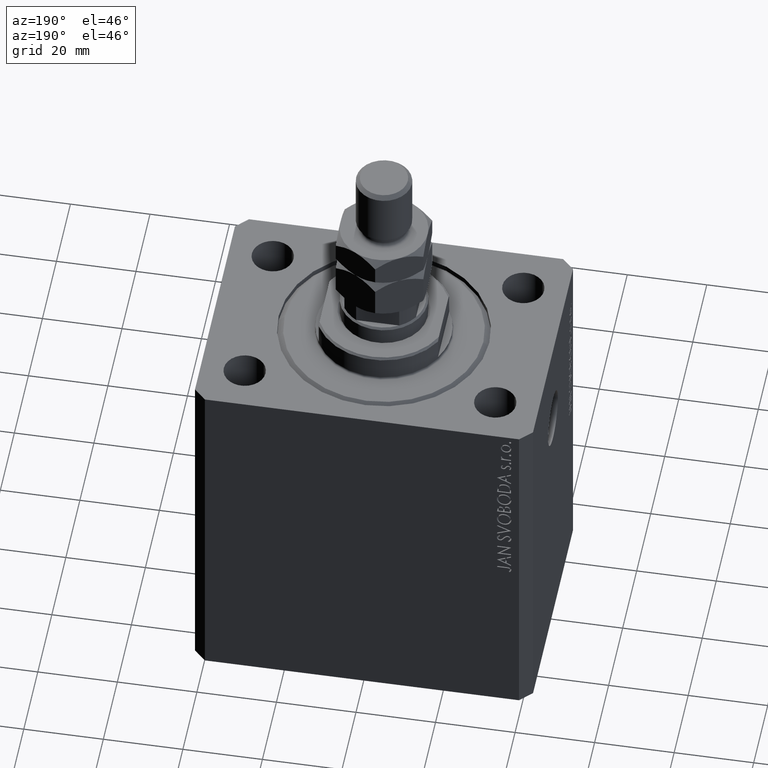
[diagram: clean part render]
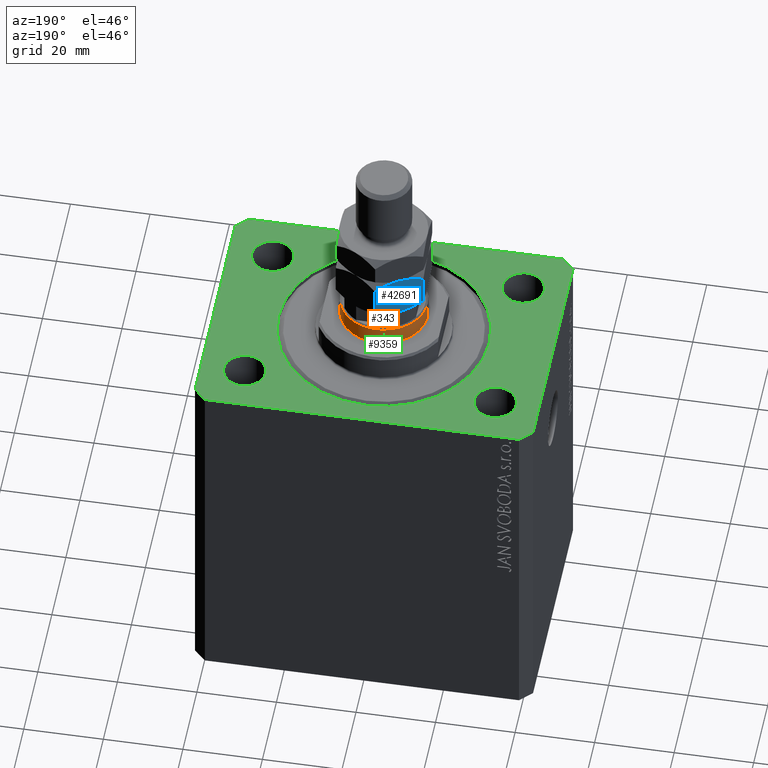
[diagram: same view with three faces highlighted in distinct colors, each labeled with its STEP entity id]
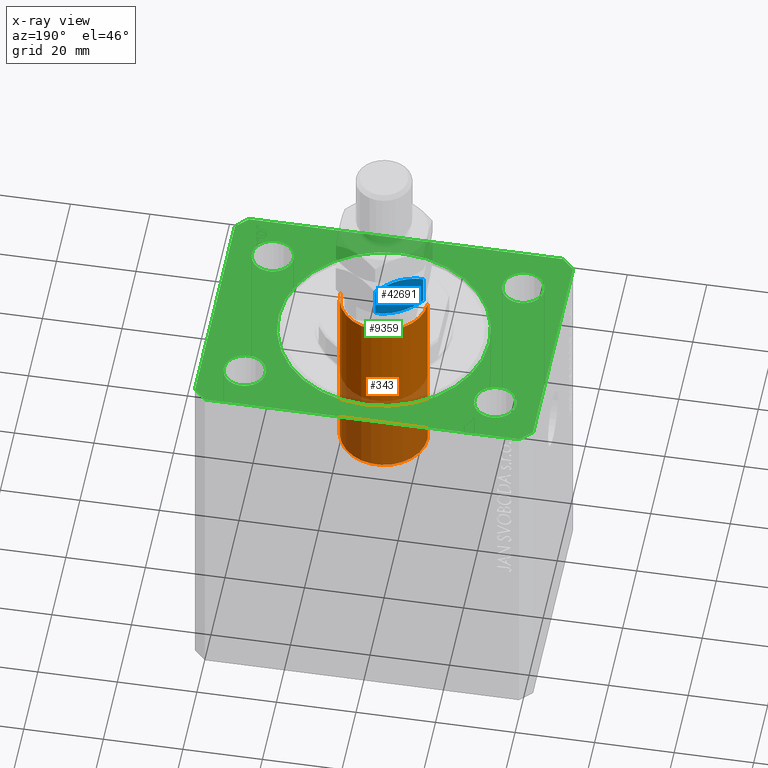
[diagram: x-ray of the same camera — body ghosted, the three highlighted faces saturated]
A machine part, auxiliary view with three faces highlighted in distinct colors.
The next image is the same camera in x-ray (body ghosted, the three faces saturated) — at least one of them is partly hidden behind the body in this view.
Their STEP definitions:

[orange] entity #343 — the highlighted cylindrical surface (partial cylindrical patch) has radius 11 mm, axis along (-0, -0, -1).
#343 = ADVANCED_FACE ( 'NONE', ( #35936 ), #31280, .T. ) ;
#1578 = ORIENTED_EDGE ( 'NONE', *, *, #38463, .F. ) ;
#1608 = VECTOR ( 'NONE', #12816, 1000.000000000000000 ) ;
#5433 = EDGE_CURVE ( 'NONE', #44333, #22823, #41202, .T. ) ;
#6532 = AXIS2_PLACEMENT_3D ( 'NONE', #39536, #35344, #32780 ) ;
#9486 = ORIENTED_EDGE ( 'NONE', *, *, #19312, .T. ) ;
#10927 = CARTESIAN_POINT ( 'NONE',  ( 0.000000000000000000, 0.000000000000000000, 92.60000000000005116 ) ) ;
#10986 = LINE ( 'NONE', #45418, #15664 ) ;
#12816 = DIRECTION ( 'NONE',  ( -0.000000000000000000, -0.000000000000000000, -1.000000000000000000 ) ) ;
#13266 = LINE ( 'NONE', #13494, #1608 ) ;
#13494 = CARTESIAN_POINT ( 'NONE',  ( -11.00000000000000000, 0.000000000000000000, 93.10000000000000853 ) ) ;
#15664 = VECTOR ( 'NONE', #17967, 1000.000000000000000 ) ;
#17452 = DIRECTION ( 'NONE',  ( 1.000000000000000000, 0.000000000000000000, 0.000000000000000000 ) ) ;
#17930 = CARTESIAN_POINT ( 'NONE',  ( -11.00000000000000000, 0.000000000000000000, 92.60000000000005116 ) ) ;
#17967 = DIRECTION ( 'NONE',  ( -0.000000000000000000, -0.000000000000000000, -1.000000000000000000 ) ) ;
#19312 = EDGE_CURVE ( 'NONE', #21444, #32672, #43736, .T. ) ;
#20804 = CARTESIAN_POINT ( 'NONE',  ( 0.000000000000000000, 0.000000000000000000, 93.10000000000000853 ) ) ;
#21444 = VERTEX_POINT ( 'NONE', #30530 ) ;
#22823 = VERTEX_POINT ( 'NONE', #39937 ) ;
#24200 = DIRECTION ( 'NONE',  ( 0.000000000000000000, 0.000000000000000000, -1.000000000000000000 ) ) ;
#24849 = AXIS2_PLACEMENT_3D ( 'NONE', #10927, #24200, #17452 ) ;
#27804 = ORIENTED_EDGE ( 'NONE', *, *, #31539, .T. ) ;
#30530 = CARTESIAN_POINT ( 'NONE',  ( 11.00000000000000000, 1.347111479062088207E-15, 44.60000000000000142 ) ) ;
#31280 = CYLINDRICAL_SURFACE ( 'NONE', #38329, 11.00000000000000000 ) ;
#31539 = EDGE_CURVE ( 'NONE', #22823, #21444, #10986, .T. ) ;
#32486 = EDGE_LOOP ( 'NONE', ( #43269, #27804, #9486, #1578 ) ) ;
#32672 = VERTEX_POINT ( 'NONE', #40020 ) ;
#32780 = DIRECTION ( 'NONE',  ( 1.000000000000000000, 0.000000000000000000, 0.000000000000000000 ) ) ;
#35344 = DIRECTION ( 'NONE',  ( 0.000000000000000000, 0.000000000000000000, 1.000000000000000000 ) ) ;
#35936 = FACE_OUTER_BOUND ( 'NONE', #32486, .T. ) ;
#38329 = AXIS2_PLACEMENT_3D ( 'NONE', #20804, #45459, #42679 ) ;
#38463 = EDGE_CURVE ( 'NONE', #44333, #32672, #13266, .T. ) ;
#39536 = CARTESIAN_POINT ( 'NONE',  ( 0.000000000000000000, 0.000000000000000000, 44.60000000000000142 ) ) ;
#39937 = CARTESIAN_POINT ( 'NONE',  ( 11.00000000000000000, 1.347111479062088207E-15, 92.60000000000005116 ) ) ;
#40020 = CARTESIAN_POINT ( 'NONE',  ( -11.00000000000000000, 0.000000000000000000, 44.60000000000000142 ) ) ;
#41202 = CIRCLE ( 'NONE', #24849, 11.00000000000000000 ) ;
#42679 = DIRECTION ( 'NONE',  ( -1.000000000000000000, 0.000000000000000000, 0.000000000000000000 ) ) ;
#43269 = ORIENTED_EDGE ( 'NONE', *, *, #5433, .T. ) ;
#43736 = CIRCLE ( 'NONE', #6532, 11.00000000000000000 ) ;
#44333 = VERTEX_POINT ( 'NONE', #17930 ) ;
#45418 = CARTESIAN_POINT ( 'NONE',  ( 11.00000000000000000, 1.347111479062088207E-15, 93.10000000000000853 ) ) ;
#45459 = DIRECTION ( 'NONE',  ( -0.000000000000000000, -0.000000000000000000, -1.000000000000000000 ) ) ;

[blue] entity #42691 — the highlighted planar face has unit normal (0.5, -0.866, 0).
#442 = B_SPLINE_CURVE_WITH_KNOTS ( 'NONE', 3,
 ( #16949, #30916, #34184, #1429, #16502, #31141 ),
 .UNSPECIFIED., .F., .F.,
 ( 4, 2, 4 ),
 ( 0.006583488920348289086, 0.009852050593448704457, 0.01312061226654911983 ),
 .UNSPECIFIED. ) ;
#1238 = CARTESIAN_POINT ( 'NONE',  ( -4.327962126576701651E-16, 12.70170592217176342, 9.298294077828241910 ) ) ;
#1429 = CARTESIAN_POINT ( 'NONE',  ( -9.251785468064188223, 7.360185091700242488, 10.22231519547797340 ) ) ;
#2005 = EDGE_LOOP ( 'NONE', ( #41921, #19827, #29934, #8061, #8279, #2424 ) ) ;
#2111 = CARTESIAN_POINT ( 'NONE',  ( -9.255521992360788985, 7.358027808391769398, 0.7806233875467772920 ) ) ;
#2215 = DIRECTION ( 'NONE',  ( 0.4999999999999993339, -0.8660254037844390407, 0.000000000000000000 ) ) ;
#2424 = ORIENTED_EDGE ( 'NONE', *, *, #34961, .F. ) ;
#5032 = FACE_OUTER_BOUND ( 'NONE', #2005, .T. ) ;
#5287 = B_SPLINE_CURVE_WITH_KNOTS ( 'NONE', 3,
 ( #1238, #29432, #43618, #36406, #25237, #39444, #11746, #25928 ),
 .UNSPECIFIED., .F., .F.,
 ( 4, 2, 2, 4 ),
 ( 2.544311317609508508E-07, 0.003291871675740026034, 0.004937680298044156910, 0.006583488920348289086 ),
 .UNSPECIFIED. ) ;
#6163 = EDGE_CURVE ( 'NONE', #33749, #21313, #43237, .T. ) ;
#6251 = EDGE_CURVE ( 'NONE', #28435, #33749, #27255, .T. ) ;
#6745 = CARTESIAN_POINT ( 'NONE',  ( -11.00000000000000000, 6.350852961085892368, 1.701705922171765195 ) ) ;
#7313 = CARTESIAN_POINT ( 'NONE',  ( -0.8614806024966418230, 12.20432986441868728, 1.204329864418604235 ) ) ;
#7670 = AXIS2_PLACEMENT_3D ( 'NONE', #37826, #2215, #37152 ) ;
#7780 = CARTESIAN_POINT ( 'NONE',  ( -5.499999999999992895, 9.526279441628830114, 0.000000000000000000 ) ) ;
#8061 = ORIENTED_EDGE ( 'NONE', *, *, #9406, .F. ) ;
#8279 = ORIENTED_EDGE ( 'NONE', *, *, #10611, .T. ) ;
#9114 = CARTESIAN_POINT ( 'NONE',  ( -7.884967580346608607, 8.149317767107183030, 0.3282192120904074417 ) ) ;
#9406 = EDGE_CURVE ( 'NONE', #43602, #23728, #5287, .T. ) ;
#10473 = CARTESIAN_POINT ( 'NONE',  ( 0.000000000000000000, 12.70170592217176342, 11.00000000000000000 ) ) ;
#10611 = EDGE_CURVE ( 'NONE', #43602, #27162, #42356, .T. ) ;
#11746 = CARTESIAN_POINT ( 'NONE',  ( -5.018290712253354435, 9.804394428580495813, 11.00000000000000178 ) ) ;
#13281 = DIRECTION ( 'NONE',  ( -0.000000000000000000, -0.000000000000000000, -1.000000000000000000 ) ) ;
#14770 = CARTESIAN_POINT ( 'NONE',  ( 9.006588997586899406E-16, 12.70170592217176342, 1.701705922171758312 ) ) ;
#15662 = CARTESIAN_POINT ( 'NONE',  ( -5.499999999999992895, 9.526279441628830114, 0.000000000000000000 ) ) ;
#16502 = CARTESIAN_POINT ( 'NONE',  ( -10.13851939750335696, 6.848229018838968507, 9.795670135581390880 ) ) ;
#16949 = CARTESIAN_POINT ( 'NONE',  ( -5.499999999999990230, 9.526279441628824785, 11.00000000000000000 ) ) ;
#17910 = CARTESIAN_POINT ( 'NONE',  ( -11.00000000000000000, 6.350852961085890591, 9.298294077828234805 ) ) ;
#19827 = ORIENTED_EDGE ( 'NONE', *, *, #6251, .F. ) ;
#20280 = CARTESIAN_POINT ( 'NONE',  ( -7.420105971005176215, 8.417705742396382362, 0.2081220748670755127 ) ) ;
#21313 = VERTEX_POINT ( 'NONE', #15662 ) ;
#21998 = CARTESIAN_POINT ( 'NONE',  ( -4.543329525579419048, 10.07861339756131791, 1.768604793866978714E-15 ) ) ;
#23728 = VERTEX_POINT ( 'NONE', #32049 ) ;
#25237 = CARTESIAN_POINT ( 'NONE',  ( -3.579894028994817123, 10.63485314086127786, 10.79187792513292798 ) ) ;
#25928 = CARTESIAN_POINT ( 'NONE',  ( -5.499999999999990230, 9.526279441628824785, 11.00000000000000000 ) ) ;
#26797 = CARTESIAN_POINT ( 'NONE',  ( -5.499999999999992895, 9.526279441628830114, 0.000000000000000000 ) ) ;
#27162 = VERTEX_POINT ( 'NONE', #34908 ) ;
#27255 = LINE ( 'NONE', #45158, #36029 ) ;
#28435 = VERTEX_POINT ( 'NONE', #17910 ) ;
#29432 = CARTESIAN_POINT ( 'NONE',  ( -0.8624791307172121613, 12.20375336388174681, 9.796246636118258522 ) ) ;
#29934 = ORIENTED_EDGE ( 'NONE', *, *, #43277, .F. ) ;
#30916 = CARTESIAN_POINT ( 'NONE',  ( -6.456670474420569406, 8.973945485696344093, 11.00000000000000000 ) ) ;
#31141 = CARTESIAN_POINT ( 'NONE',  ( -11.00000000000000000, 6.350852961085890591, 9.298294077828234805 ) ) ;
#32049 = CARTESIAN_POINT ( 'NONE',  ( -5.499999999999990230, 9.526279441628824785, 11.00000000000000000 ) ) ;
#32454 = CARTESIAN_POINT ( 'NONE',  ( -1.748214531935804672, 11.69237379155741330, 0.7776848045220272621 ) ) ;
#33749 = VERTEX_POINT ( 'NONE', #6745 ) ;
#33786 = CARTESIAN_POINT ( 'NONE',  ( -11.00000000000000000, 6.350852961085892368, 1.701705922171765195 ) ) ;
#34184 = CARTESIAN_POINT ( 'NONE',  ( -7.397073880711845462, 8.431003325927239445, 10.83109139163524404 ) ) ;
#34469 = CARTESIAN_POINT ( 'NONE',  ( -5.981709287746635795, 9.248164454677164414, 1.734723475976807094E-15 ) ) ;
#34908 = CARTESIAN_POINT ( 'NONE',  ( 9.006588997586899406E-16, 12.70170592217176342, 1.701705922171758312 ) ) ;
#34961 = EDGE_CURVE ( 'NONE', #21313, #27162, #41145, .T. ) ;
#36029 = VECTOR ( 'NONE', #44707, 1000.000000000000000 ) ;
#36175 = CARTESIAN_POINT ( 'NONE',  ( -3.602926119288147433, 10.62155555733042434, 0.1689086083647601266 ) ) ;
#36406 = CARTESIAN_POINT ( 'NONE',  ( -3.115032419653383400, 10.90324111615047542, 10.67178078790959539 ) ) ;
#37152 = DIRECTION ( 'NONE',  ( 0.8660254037844389297, 0.4999999999999992784, 0.000000000000000000 ) ) ;
#37603 = PLANE ( 'NONE',  #7670 ) ;
#37826 = CARTESIAN_POINT ( 'NONE',  ( 0.000000000000000000, 12.70170592217176342, 11.00000000000000000 ) ) ;
#37951 = CARTESIAN_POINT ( 'NONE',  ( -10.13752086928278118, 6.848805519375908979, 1.203753363881748362 ) ) ;
#39444 = CARTESIAN_POINT ( 'NONE',  ( -4.529374112020101428, 10.08667055933643830, 10.95634070256487469 ) ) ;
#41145 = B_SPLINE_CURVE_WITH_KNOTS ( 'NONE', 3,
 ( #7780, #21998, #36175, #32454, #7313, #14770 ),
 .UNSPECIFIED., .F., .F.,
 ( 4, 2, 4 ),
 ( 0.006583488920348303831, 0.009852050593448711396, 0.01312061226654911809 ),
 .UNSPECIFIED. ) ;
#41921 = ORIENTED_EDGE ( 'NONE', *, *, #6163, .F. ) ;
#42019 = CARTESIAN_POINT ( 'NONE',  ( -4.327962126576701651E-16, 12.70170592217176342, 9.298294077828241910 ) ) ;
#42356 = LINE ( 'NONE', #10473, #43252 ) ;
#42691 = ADVANCED_FACE ( 'NONE', ( #5032 ), #37603, .F. ) ;
#43237 = B_SPLINE_CURVE_WITH_KNOTS ( 'NONE', 3,
 ( #33786, #37951, #2111, #9114, #20280, #45376, #34469, #26797 ),
 .UNSPECIFIED., .F., .F.,
 ( 4, 2, 2, 4 ),
 ( 2.544311317612473652E-07, 0.003291871675740032539, 0.004937680298044168185, 0.006583488920348303831 ),
 .UNSPECIFIED. ) ;
#43252 = VECTOR ( 'NONE', #13281, 1000.000000000000000 ) ;
#43277 = EDGE_CURVE ( 'NONE', #23728, #28435, #442, .T. ) ;
#43602 = VERTEX_POINT ( 'NONE', #42019 ) ;
#43618 = CARTESIAN_POINT ( 'NONE',  ( -1.744478007639206130, 11.69453107486589083, 10.21937661245322637 ) ) ;
#44707 = DIRECTION ( 'NONE',  ( -0.000000000000000000, -0.000000000000000000, -1.000000000000000000 ) ) ;
#45158 = CARTESIAN_POINT ( 'NONE',  ( -11.00000000000000000, 6.350852961085890591, 11.00000000000000000 ) ) ;
#45376 = CARTESIAN_POINT ( 'NONE',  ( -6.470625887979888802, 8.965888323921223702, 0.04365929743512723255 ) ) ;

[green] entity #9359 — the highlighted planar face has unit normal (0, 0, 1).
#117 = VERTEX_POINT ( 'NONE', #4147 ) ;
#157 = CIRCLE ( 'NONE', #41811, 5.250000000000000888 ) ;
#229 = AXIS2_PLACEMENT_3D ( 'NONE', #12616, #33566, #8886 ) ;
#309 = EDGE_CURVE ( 'NONE', #11316, #4796, #17773, .T. ) ;
#405 = VECTOR ( 'NONE', #31740, 1000.000000000000114 ) ;
#542 = PLANE ( 'NONE',  #35781 ) ;
#978 = VECTOR ( 'NONE', #18097, 1000.000000000000000 ) ;
#1433 = CARTESIAN_POINT ( 'NONE',  ( -36.74999999999999289, -20.00000000000000355, 0.000000000000000000 ) ) ;
#1660 = CARTESIAN_POINT ( 'NONE',  ( 36.74999999999999289, -20.00000000000000355, 0.000000000000000000 ) ) ;
#2466 = EDGE_CURVE ( 'NONE', #21370, #44953, #31538, .T. ) ;
#2717 = CARTESIAN_POINT ( 'NONE',  ( -39.50000000000000711, 31.50000000000000000, 0.000000000000000000 ) ) ;
#2769 = CIRCLE ( 'NONE', #15433, 5.250000000000000888 ) ;
#2870 = EDGE_CURVE ( 'NONE', #24337, #21045, #11691, .T. ) ;
#3611 = CARTESIAN_POINT ( 'NONE',  ( -26.50000000000000355, 3.245314017740486554E-15, 0.000000000000000000 ) ) ;
#3902 = DIRECTION ( 'NONE',  ( 0.7071067811865483499, 0.7071067811865466846, 0.000000000000000000 ) ) ;
#4147 = CARTESIAN_POINT ( 'NONE',  ( 26.24999999999999645, -20.00000000000000355, 0.000000000000000000 ) ) ;
#4379 = ORIENTED_EDGE ( 'NONE', *, *, #37944, .F. ) ;
#4512 = FACE_BOUND ( 'NONE', #43659, .T. ) ;
#4796 = VERTEX_POINT ( 'NONE', #45980 ) ;
#5135 = DIRECTION ( 'NONE',  ( 1.000000000000000000, 0.000000000000000000, 0.000000000000000000 ) ) ;
#5367 = DIRECTION ( 'NONE',  ( 0.000000000000000000, 0.000000000000000000, 1.000000000000000000 ) ) ;
#5512 = VECTOR ( 'NONE', #33326, 1000.000000000000000 ) ;
#5907 = DIRECTION ( 'NONE',  ( 1.000000000000000000, 0.000000000000000000, 0.000000000000000000 ) ) ;
#5973 = ORIENTED_EDGE ( 'NONE', *, *, #40123, .T. ) ;
#6657 = ORIENTED_EDGE ( 'NONE', *, *, #14034, .F. ) ;
#6891 = ORIENTED_EDGE ( 'NONE', *, *, #9670, .T. ) ;
#7043 = CARTESIAN_POINT ( 'NONE',  ( -31.50000000000000000, 19.99999999999999645, 0.000000000000000000 ) ) ;
#7070 = DIRECTION ( 'NONE',  ( 1.000000000000000000, 0.000000000000000000, 0.000000000000000000 ) ) ;
#7399 = LINE ( 'NONE', #43480, #43292 ) ;
#7588 = CARTESIAN_POINT ( 'NONE',  ( 36.75000000000000000, 19.99999999999999289, 0.000000000000000000 ) ) ;
#8010 = DIRECTION ( 'NONE',  ( 1.000000000000000000, 0.000000000000000000, -0.000000000000000000 ) ) ;
#8120 = LINE ( 'NONE', #36527, #22410 ) ;
#8742 = ORIENTED_EDGE ( 'NONE', *, *, #42578, .T. ) ;
#8886 = DIRECTION ( 'NONE',  ( 1.000000000000000000, 0.000000000000000000, 0.000000000000000000 ) ) ;
#9247 = EDGE_LOOP ( 'NONE', ( #41302, #38314 ) ) ;
#9359 = ADVANCED_FACE ( 'NONE', ( #43849, #43396, #4512, #18961, #22000, #18490 ), #542, .T. ) ;
#9460 = EDGE_CURVE ( 'NONE', #45649, #27374, #37277, .T. ) ;
#9670 = EDGE_CURVE ( 'NONE', #4796, #24337, #8120, .T. ) ;
#9796 = AXIS2_PLACEMENT_3D ( 'NONE', #33316, #5367, #5135 ) ;
#10523 = CARTESIAN_POINT ( 'NONE',  ( -26.25000000000000000, 19.99999999999999645, 0.000000000000000000 ) ) ;
#10617 = AXIS2_PLACEMENT_3D ( 'NONE', #21787, #25027, #39225 ) ;
#10795 = ORIENTED_EDGE ( 'NONE', *, *, #25077, .T. ) ;
#11155 = ORIENTED_EDGE ( 'NONE', *, *, #2466, .T. ) ;
#11316 = VERTEX_POINT ( 'NONE', #34918 ) ;
#11691 = LINE ( 'NONE', #44030, #5512 ) ;
#11810 = LINE ( 'NONE', #15528, #978 ) ;
#11816 = DIRECTION ( 'NONE',  ( 8.886653596232072440E-15, 1.000000000000000000, 0.000000000000000000 ) ) ;
#11949 = ORIENTED_EDGE ( 'NONE', *, *, #38352, .F. ) ;
#12068 = CIRCLE ( 'NONE', #18779, 5.249999999999997335 ) ;
#12162 = CARTESIAN_POINT ( 'NONE',  ( -31.50000000000000000, 19.99999999999999645, 0.000000000000000000 ) ) ;
#12168 = CIRCLE ( 'NONE', #15156, 5.250000000000000888 ) ;
#12223 = EDGE_CURVE ( 'NONE', #117, #36104, #12068, .T. ) ;
#12616 = CARTESIAN_POINT ( 'NONE',  ( 0.000000000000000000, 0.000000000000000000, 0.000000000000000000 ) ) ;
#13304 = CARTESIAN_POINT ( 'NONE',  ( -31.49999999999999289, -20.00000000000000355, 0.000000000000000000 ) ) ;
#14034 = EDGE_CURVE ( 'NONE', #36104, #117, #32964, .T. ) ;
#14208 = CARTESIAN_POINT ( 'NONE',  ( -36.75000000000000000, 19.99999999999999645, 0.000000000000000000 ) ) ;
#15041 = ORIENTED_EDGE ( 'NONE', *, *, #309, .T. ) ;
#15156 = AXIS2_PLACEMENT_3D ( 'NONE', #12162, #40546, #33335 ) ;
#15431 = CARTESIAN_POINT ( 'NONE',  ( -42.50000000000000000, -28.50000000000000000, 0.000000000000000000 ) ) ;
#15433 = AXIS2_PLACEMENT_3D ( 'NONE', #29923, #44789, #44338 ) ;
#15498 = CIRCLE ( 'NONE', #27371, 5.250000000000000888 ) ;
#15528 = CARTESIAN_POINT ( 'NONE',  ( -42.50000000000000000, 28.50000000000000000, 0.000000000000000000 ) ) ;
#16870 = VERTEX_POINT ( 'NONE', #34827 ) ;
#17200 = CIRCLE ( 'NONE', #41000, 5.249999999999997335 ) ;
#17773 = LINE ( 'NONE', #35233, #405 ) ;
#17785 = CARTESIAN_POINT ( 'NONE',  ( 31.50000000000000000, 19.99999999999999289, 0.000000000000000000 ) ) ;
#18097 = DIRECTION ( 'NONE',  ( 0.000000000000000000, -1.000000000000000000, 0.000000000000000000 ) ) ;
#18284 = CARTESIAN_POINT ( 'NONE',  ( -42.50000000000000000, 28.50000000000000000, 0.000000000000000000 ) ) ;
#18490 = FACE_OUTER_BOUND ( 'NONE', #33239, .T. ) ;
#18779 = AXIS2_PLACEMENT_3D ( 'NONE', #22684, #29434, #37327 ) ;
#18961 = FACE_BOUND ( 'NONE', #45683, .T. ) ;
#19025 = CARTESIAN_POINT ( 'NONE',  ( 42.50000000000000711, -28.50000000000000355, 0.000000000000000000 ) ) ;
#20774 = CARTESIAN_POINT ( 'NONE',  ( 0.000000000000000000, 0.000000000000000000, 0.000000000000000000 ) ) ;
#21045 = VERTEX_POINT ( 'NONE', #18284 ) ;
#21238 = EDGE_CURVE ( 'NONE', #33827, #23905, #15498, .T. ) ;
#21370 = VERTEX_POINT ( 'NONE', #15431 ) ;
#21787 = CARTESIAN_POINT ( 'NONE',  ( 31.49999999999999289, -20.00000000000000355, 0.000000000000000000 ) ) ;
#21972 = ORIENTED_EDGE ( 'NONE', *, *, #2870, .T. ) ;
#22000 = FACE_BOUND ( 'NONE', #32313, .T. ) ;
#22410 = VECTOR ( 'NONE', #45309, 1000.000000000000000 ) ;
#22684 = CARTESIAN_POINT ( 'NONE',  ( 31.49999999999999289, -20.00000000000000355, 0.000000000000000000 ) ) ;
#22932 = EDGE_CURVE ( 'NONE', #44238, #43131, #2769, .T. ) ;
#23153 = LINE ( 'NONE', #23828, #38820 ) ;
#23828 = CARTESIAN_POINT ( 'NONE',  ( -39.50000000000000711, -31.50000000000000000, 0.000000000000000000 ) ) ;
#23905 = VERTEX_POINT ( 'NONE', #10523 ) ;
#24067 = CARTESIAN_POINT ( 'NONE',  ( -39.50000000000000711, -31.50000000000000000, 0.000000000000000000 ) ) ;
#24091 = CARTESIAN_POINT ( 'NONE',  ( -42.50000000000000000, -28.50000000000000000, 0.000000000000000000 ) ) ;
#24337 = VERTEX_POINT ( 'NONE', #2717 ) ;
#24773 = DIRECTION ( 'NONE',  ( 0.7071067811865471286, -0.7071067811865479058, 0.000000000000000000 ) ) ;
#24969 = ORIENTED_EDGE ( 'NONE', *, *, #43255, .F. ) ;
#25027 = DIRECTION ( 'NONE',  ( 0.000000000000000000, 0.000000000000000000, 1.000000000000000000 ) ) ;
#25077 = EDGE_CURVE ( 'NONE', #32965, #11316, #43003, .T. ) ;
#25310 = CARTESIAN_POINT ( 'NONE',  ( 42.50000000000000711, -28.50000000000000355, 0.000000000000000000 ) ) ;
#25439 = ORIENTED_EDGE ( 'NONE', *, *, #22932, .F. ) ;
#25470 = DIRECTION ( 'NONE',  ( 0.000000000000000000, 0.000000000000000000, 1.000000000000000000 ) ) ;
#25698 = CARTESIAN_POINT ( 'NONE',  ( 0.000000000000000000, 0.000000000000000000, 0.000000000000000000 ) ) ;
#26116 = AXIS2_PLACEMENT_3D ( 'NONE', #20774, #42405, #27990 ) ;
#27371 = AXIS2_PLACEMENT_3D ( 'NONE', #7043, #39406, #45678 ) ;
#27374 = VERTEX_POINT ( 'NONE', #33039 ) ;
#27782 = EDGE_LOOP ( 'NONE', ( #34261, #25439 ) ) ;
#27990 = DIRECTION ( 'NONE',  ( 1.000000000000000000, 0.000000000000000000, 0.000000000000000000 ) ) ;
#29434 = DIRECTION ( 'NONE',  ( 0.000000000000000000, 0.000000000000000000, 1.000000000000000000 ) ) ;
#29923 = CARTESIAN_POINT ( 'NONE',  ( -31.49999999999999289, -20.00000000000000355, 0.000000000000000000 ) ) ;
#31224 = DIRECTION ( 'NONE',  ( 0.000000000000000000, 0.000000000000000000, 1.000000000000000000 ) ) ;
#31538 = LINE ( 'NONE', #24091, #45637 ) ;
#31740 = DIRECTION ( 'NONE',  ( -0.7071067811865364705, 0.7071067811865584529, 0.000000000000000000 ) ) ;
#32313 = EDGE_LOOP ( 'NONE', ( #24969, #37619 ) ) ;
#32964 = CIRCLE ( 'NONE', #10617, 5.249999999999997335 ) ;
#32965 = VERTEX_POINT ( 'NONE', #19025 ) ;
#33039 = CARTESIAN_POINT ( 'NONE',  ( 26.50000000000000355, 0.000000000000000000, 0.000000000000000000 ) ) ;
#33175 = VERTEX_POINT ( 'NONE', #45944 ) ;
#33239 = EDGE_LOOP ( 'NONE', ( #6891, #21972, #8742, #11155, #41242, #5973, #10795, #15041 ) ) ;
#33316 = CARTESIAN_POINT ( 'NONE',  ( 31.50000000000000000, 19.99999999999999289, 0.000000000000000000 ) ) ;
#33326 = DIRECTION ( 'NONE',  ( -0.7071067811865471286, -0.7071067811865479058, 0.000000000000000000 ) ) ;
#33335 = DIRECTION ( 'NONE',  ( 1.000000000000000000, 0.000000000000000000, 0.000000000000000000 ) ) ;
#33566 = DIRECTION ( 'NONE',  ( 0.000000000000000000, 0.000000000000000000, 1.000000000000000000 ) ) ;
#33827 = VERTEX_POINT ( 'NONE', #14208 ) ;
#34261 = ORIENTED_EDGE ( 'NONE', *, *, #40673, .F. ) ;
#34827 = CARTESIAN_POINT ( 'NONE',  ( 26.25000000000000355, 19.99999999999999289, 0.000000000000000000 ) ) ;
#34918 = CARTESIAN_POINT ( 'NONE',  ( 42.50000000000051870, 28.49999999999995381, 0.000000000000000000 ) ) ;
#35233 = CARTESIAN_POINT ( 'NONE',  ( 42.50000000000051870, 28.49999999999995381, 0.000000000000000000 ) ) ;
#35781 = AXIS2_PLACEMENT_3D ( 'NONE', #25698, #25470, #8010 ) ;
#36104 = VERTEX_POINT ( 'NONE', #1660 ) ;
#36527 = CARTESIAN_POINT ( 'NONE',  ( 39.50000000000056843, 31.49999999999999289, 0.000000000000000000 ) ) ;
#37277 = CIRCLE ( 'NONE', #26116, 26.50000000000000355 ) ;
#37327 = DIRECTION ( 'NONE',  ( 1.000000000000000000, 0.000000000000000000, 0.000000000000000000 ) ) ;
#37619 = ORIENTED_EDGE ( 'NONE', *, *, #21238, .F. ) ;
#37944 = EDGE_CURVE ( 'NONE', #41344, #16870, #17200, .T. ) ;
#38314 = ORIENTED_EDGE ( 'NONE', *, *, #9460, .F. ) ;
#38352 = EDGE_CURVE ( 'NONE', #16870, #41344, #41034, .T. ) ;
#38820 = VECTOR ( 'NONE', #5907, 1000.000000000000000 ) ;
#39157 = CARTESIAN_POINT ( 'NONE',  ( -26.24999999999999289, -20.00000000000000355, 0.000000000000000000 ) ) ;
#39225 = DIRECTION ( 'NONE',  ( 1.000000000000000000, 0.000000000000000000, 0.000000000000000000 ) ) ;
#39406 = DIRECTION ( 'NONE',  ( 0.000000000000000000, 0.000000000000000000, 1.000000000000000000 ) ) ;
#39415 = EDGE_CURVE ( 'NONE', #44953, #33175, #23153, .T. ) ;
#39669 = DIRECTION ( 'NONE',  ( 0.000000000000000000, 0.000000000000000000, 1.000000000000000000 ) ) ;
#40123 = EDGE_CURVE ( 'NONE', #33175, #32965, #7399, .T. ) ;
#40546 = DIRECTION ( 'NONE',  ( 0.000000000000000000, 0.000000000000000000, 1.000000000000000000 ) ) ;
#40673 = EDGE_CURVE ( 'NONE', #43131, #44238, #157, .T. ) ;
#41000 = AXIS2_PLACEMENT_3D ( 'NONE', #17785, #39669, #7070 ) ;
#41034 = CIRCLE ( 'NONE', #9796, 5.249999999999997335 ) ;
#41160 = CIRCLE ( 'NONE', #229, 26.50000000000000355 ) ;
#41242 = ORIENTED_EDGE ( 'NONE', *, *, #39415, .T. ) ;
#41302 = ORIENTED_EDGE ( 'NONE', *, *, #44155, .F. ) ;
#41344 = VERTEX_POINT ( 'NONE', #7588 ) ;
#41811 = AXIS2_PLACEMENT_3D ( 'NONE', #13304, #31224, #41928 ) ;
#41924 = ORIENTED_EDGE ( 'NONE', *, *, #12223, .F. ) ;
#41928 = DIRECTION ( 'NONE',  ( 1.000000000000000000, 0.000000000000000000, 0.000000000000000000 ) ) ;
#42405 = DIRECTION ( 'NONE',  ( 0.000000000000000000, 0.000000000000000000, 1.000000000000000000 ) ) ;
#42578 = EDGE_CURVE ( 'NONE', #21045, #21370, #11810, .T. ) ;
#43003 = LINE ( 'NONE', #25310, #45201 ) ;
#43131 = VERTEX_POINT ( 'NONE', #39157 ) ;
#43255 = EDGE_CURVE ( 'NONE', #23905, #33827, #12168, .T. ) ;
#43292 = VECTOR ( 'NONE', #3902, 1000.000000000000000 ) ;
#43396 = FACE_BOUND ( 'NONE', #27782, .T. ) ;
#43480 = CARTESIAN_POINT ( 'NONE',  ( 39.50000000000000711, -31.50000000000000000, 0.000000000000000000 ) ) ;
#43659 = EDGE_LOOP ( 'NONE', ( #6657, #41924 ) ) ;
#43849 = FACE_BOUND ( 'NONE', #9247, .T. ) ;
#44030 = CARTESIAN_POINT ( 'NONE',  ( -39.50000000000000711, 31.50000000000000000, 0.000000000000000000 ) ) ;
#44155 = EDGE_CURVE ( 'NONE', #27374, #45649, #41160, .T. ) ;
#44238 = VERTEX_POINT ( 'NONE', #1433 ) ;
#44338 = DIRECTION ( 'NONE',  ( 1.000000000000000000, 0.000000000000000000, 0.000000000000000000 ) ) ;
#44789 = DIRECTION ( 'NONE',  ( 0.000000000000000000, 0.000000000000000000, 1.000000000000000000 ) ) ;
#44953 = VERTEX_POINT ( 'NONE', #24067 ) ;
#45201 = VECTOR ( 'NONE', #11816, 1000.000000000000000 ) ;
#45309 = DIRECTION ( 'NONE',  ( -1.000000000000000000, 8.783410004945795812E-17, 0.000000000000000000 ) ) ;
#45637 = VECTOR ( 'NONE', #24773, 1000.000000000000000 ) ;
#45649 = VERTEX_POINT ( 'NONE', #3611 ) ;
#45678 = DIRECTION ( 'NONE',  ( 1.000000000000000000, 0.000000000000000000, 0.000000000000000000 ) ) ;
#45683 = EDGE_LOOP ( 'NONE', ( #4379, #11949 ) ) ;
#45944 = CARTESIAN_POINT ( 'NONE',  ( 39.50000000000000711, -31.50000000000000000, 0.000000000000000000 ) ) ;
#45980 = CARTESIAN_POINT ( 'NONE',  ( 39.50000000000056843, 31.49999999999999289, 0.000000000000000000 ) ) ;